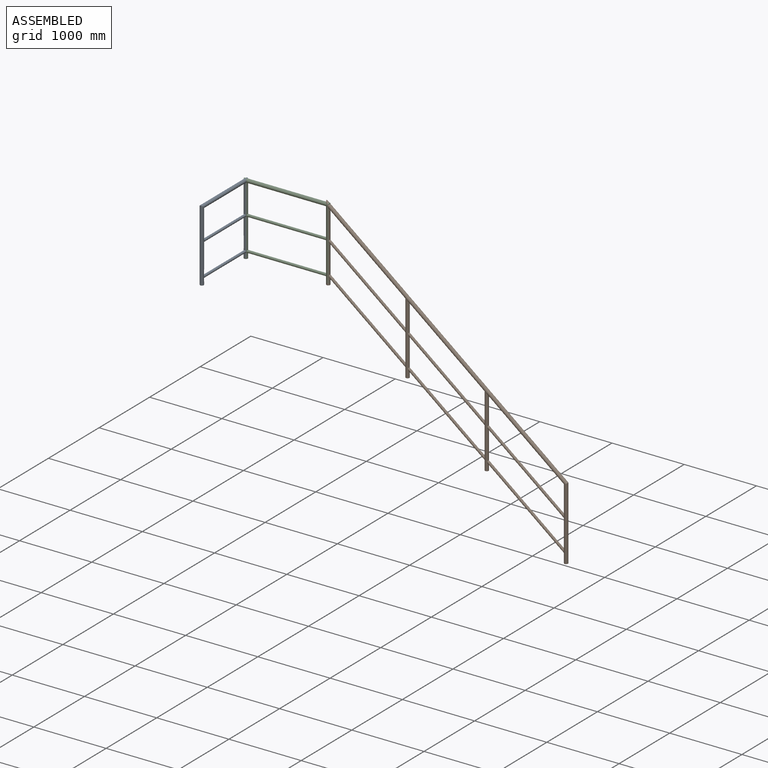
[diagram: assembled view]
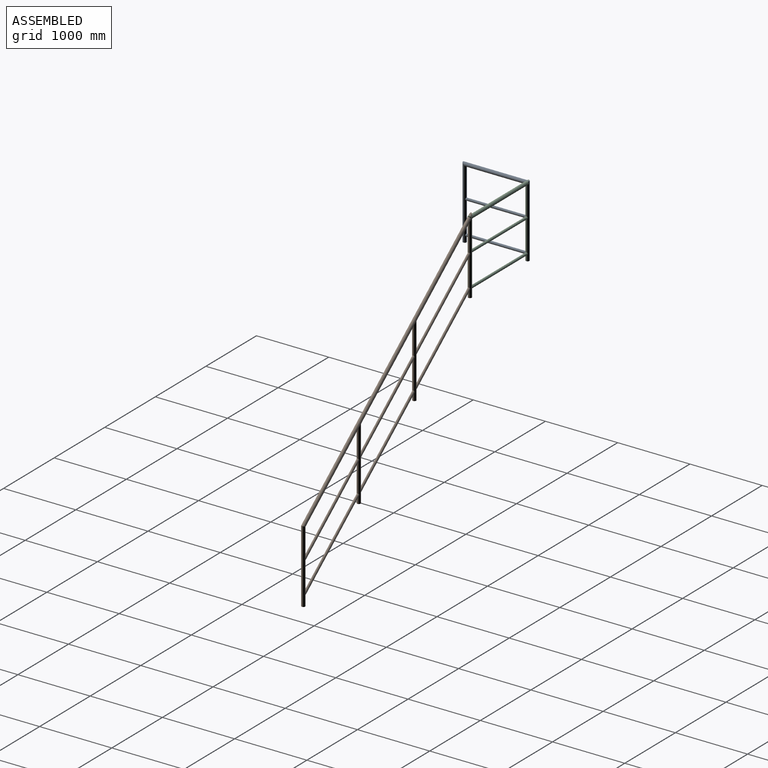
[diagram: assembled view, second angle]
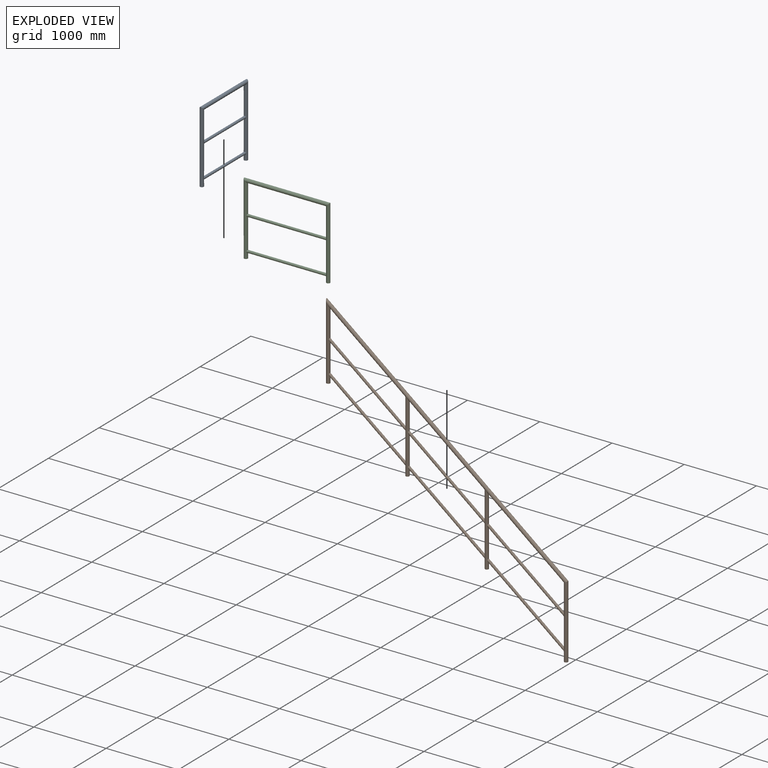
[diagram: exploded view]
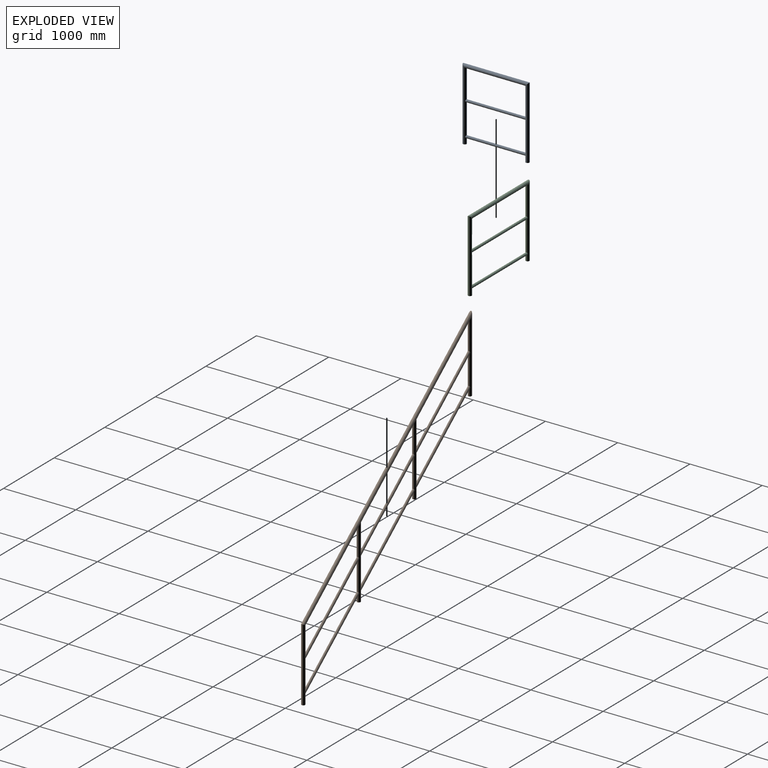
[diagram: exploded view, second angle]
ASSEMBLY  parts=3 mates=2
PART A: 7 faces, bbox 50x920x1000 mm
  f0: cylinder r=25mm len=1000mm, axis (0,0,1), area 150948.4mm2, adj f2,f3,f4,f6
  f1: cylinder r=25mm len=1000.01mm, axis (0,0,-1), area 151078.5mm2, adj f2,f3,f4,f5
  f2: cylinder r=25mm len=920.02mm, axis (0,1,0), area 136525.2mm2, adj f0,f1
  f3: cylinder r=17.5mm len=834.3mm, axis (0,1,0), area 90916.6mm2, adj f0,f1
  f4: cylinder r=17.5mm len=834.3mm, axis (0,1,0), area 90916.6mm2, adj f0,f1
  f5: plane 50x50mm, normal (0,0,-1), area 1963.5mm2, adj f1
  f6: plane 50x50mm, normal (0,0,-1), area 1963.5mm2, adj f0
PART B: 15 faces, bbox 4892x50x855.6 mm
  f0: cylinder r=25mm len=4263.78mm, axis (1,0,0), area 653015.2mm2, adj f3,f4,f6,f8
  f1: plane 50x39.2mm, normal (0.62,0,-0.78), area 1963.5mm2, adj f3
  f2: plane 50x39.2mm, normal (0.62,0,-0.78), area 1963.5mm2, adj f4
  f3: cylinder r=25mm len=824.57mm, axis (0.62,0,-0.78), area 154374mm2, adj f0,f1,f9,f11
  f4: cylinder r=25mm len=855.61mm, axis (-0.62,0,0.78), area 154161.7mm2, adj f0,f2,f13,f14
  f5: plane 50x39.2mm, normal (0.62,0,-0.78), area 1963.5mm2, adj f6
  f6: cylinder r=25mm len=815.08mm, axis (-0.62,0,0.78), area 148606.8mm2, adj f0,f5,f10,f12,f13,f14
  f7: plane 50x39.2mm, normal (0.62,0,-0.78), area 1963.5mm2, adj f8
  f8: cylinder r=25mm len=815.08mm, axis (0.62,0,-0.78), area 148606.8mm2, adj f0,f7,f9,f10,f11,f12
  f9: cylinder r=17.5mm len=1364.29mm, axis (-1,0,0), area 147885.7mm2, adj f3,f8
  f10: cylinder r=17.5mm len=1364.12mm, axis (-1,0,0), area 147406.1mm2, adj f6,f8
  f11: cylinder r=17.5mm len=1364.12mm, axis (1,0,0), area 147406.1mm2, adj f3,f8
  f12: cylinder r=17.5mm len=1364.12mm, axis (1,0,0), area 147406.1mm2, adj f6,f8
  f13: cylinder r=17.5mm len=1364.12mm, axis (-1,0,0), area 147406.1mm2, adj f4,f6
  f14: cylinder r=17.5mm len=1364.29mm, axis (1,0,0), area 147885.7mm2, adj f4,f6
PART C: 7 faces, bbox 1190x50x1000 mm
  f0: cylinder r=25mm len=1000mm, axis (0,0,1), area 151082.9mm2, adj f2,f3,f4,f6
  f1: cylinder r=25mm len=1000mm, axis (0,0,-1), area 151082.9mm2, adj f2,f3,f4,f5
  f2: cylinder r=25mm len=1190mm, axis (1,0,0), area 179070.8mm2, adj f0,f1
  f3: cylinder r=17.5mm len=1104.3mm, axis (1,0,0), area 120604.8mm2, adj f0,f1
  f4: cylinder r=17.5mm len=1104.3mm, axis (1,0,0), area 120604.8mm2, adj f0,f1
  f5: plane 50x50mm, normal (0,0,-1), area 1963.5mm2, adj f1
  f6: plane 50x50mm, normal (0,0,-1), area 1963.5mm2, adj f0
PLACE A rot(axis=(0,1,0),0deg) t=(-3170.3,-1435.28,746.15)mm
PLACE B rot(axis=(0,1,0),38.4deg) t=(-383.8,-565.28,442.67)mm
PLACE C rot(axis=(0,1,0),0deg) t=(-3170.3,-565.28,746.15)mm
MATE fastened A.f1 <-> C.f0  axis (0,0,-1) through (-3170.3,-565.28,771.15)mm
MATE fastened C.f1 <-> B.f4  axis (0,0,-1) through (-2030.3,-565.28,771.15)mm
